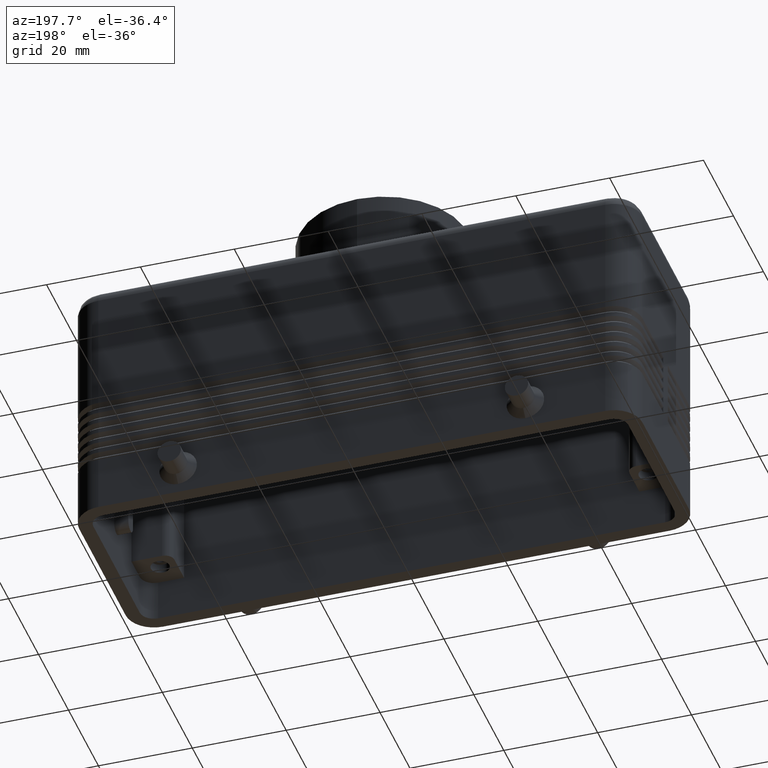
[diagram: clean part render]
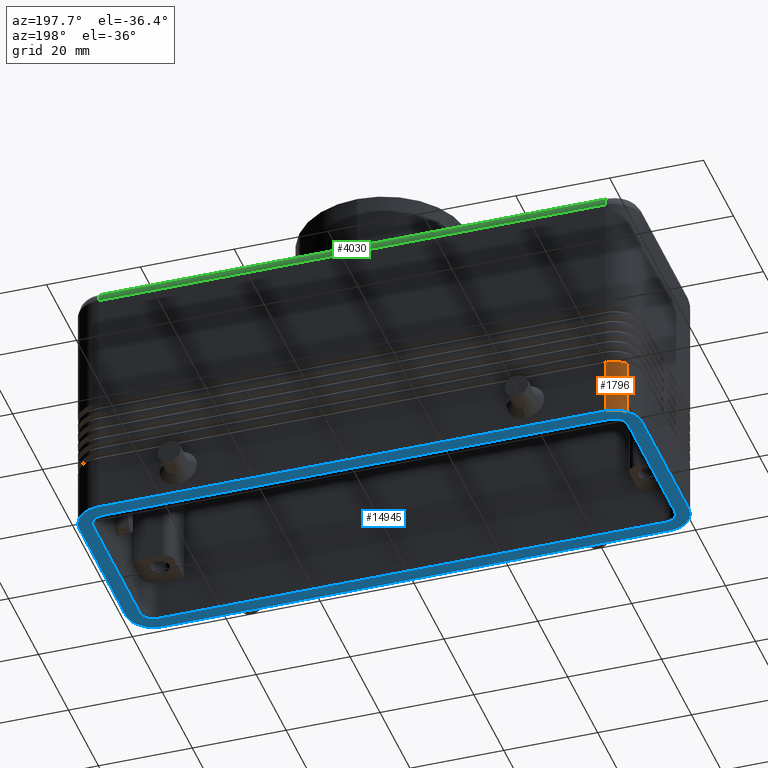
[diagram: same view with three faces highlighted in distinct colors, each labeled with its STEP entity id]
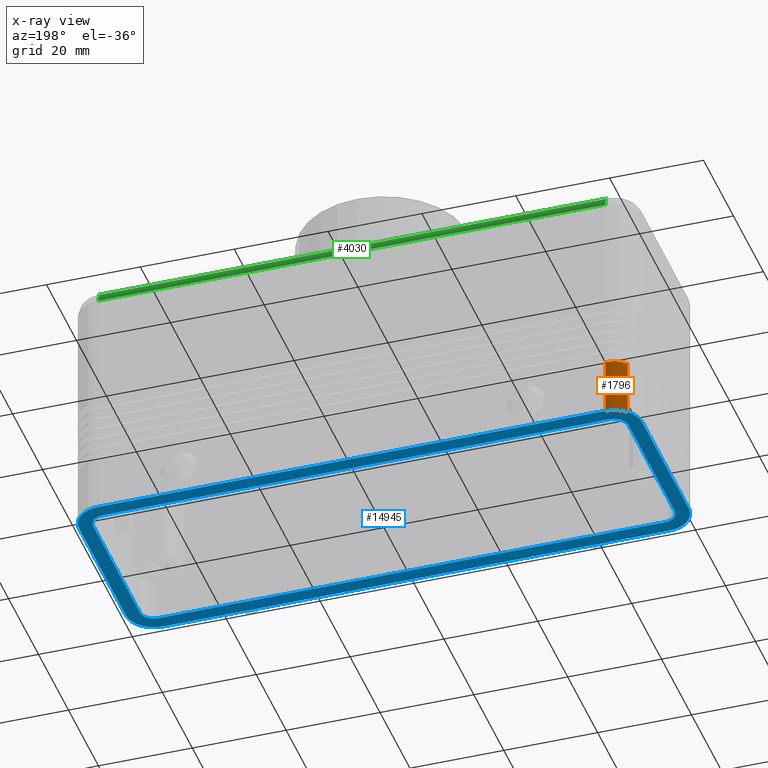
[diagram: x-ray of the same camera — body ghosted, the three highlighted faces saturated]
A machine part, auxiliary view with three faces highlighted in distinct colors.
The next image is the same camera in x-ray (body ghosted, the three faces saturated) — at least one of them is partly hidden behind the body in this view.
Their STEP definitions:

[orange] entity #1796 — the highlighted cylindrical surface (edge-blend (fillet) strip) has radius 6 mm, axis along (-0, 0, -1).
#1755=CARTESIAN_POINT('',(-53.999999999999986,15.499999999999998,41.250000000000000));
#1756=DIRECTION('',(-1.614870E-016,0.0,-1.0));
#1757=DIRECTION('',(-0.707106781186548,0.707106781186547,0.0));
#1758=AXIS2_PLACEMENT_3D('',#1755,#1756,#1757);
#1759=CYLINDRICAL_SURFACE('',#1758,6.000000000000001);
#1760=CARTESIAN_POINT('',(-58.242640687119284,19.742640687119277,12.250000000000025));
#1761=VERTEX_POINT('',#1760);
#1762=CARTESIAN_POINT('',(-58.242640687119284,19.742640687119277,0.0));
#1763=VERTEX_POINT('',#1762);
#1764=CARTESIAN_POINT('',(-58.242640687119284,19.742640687119277,12.250000000000025));
#1765=DIRECTION('',(0.0,0.0,-1.0));
#1766=VECTOR('',#1765,12.250000000000025);
#1767=LINE('',#1764,#1766);
#1768=EDGE_CURVE('',#1761,#1763,#1767,.T.);
#1769=ORIENTED_EDGE('',*,*,#1768,.F.);
#1770=CARTESIAN_POINT('',(-53.999999999999993,21.500000000000000,12.250000000000005));
#1771=VERTEX_POINT('',#1770);
#1772=CARTESIAN_POINT('',(-53.999999999999993,15.499999999999998,12.250000000000023));
#1773=DIRECTION('',(0.0,0.0,1.0));
#1774=DIRECTION('',(-0.707106781186548,0.707106781186547,0.0));
#1775=AXIS2_PLACEMENT_3D('',#1772,#1773,#1774);
#1776=CIRCLE('',#1775,6.0);
#1777=EDGE_CURVE('',#1771,#1761,#1776,.T.);
#1778=ORIENTED_EDGE('',*,*,#1777,.F.);
#1779=CARTESIAN_POINT('',(-53.999999999999986,21.500000000000000,0.0));
#1780=VERTEX_POINT('',#1779);
#1781=CARTESIAN_POINT('',(-53.999999999999993,21.500000000000000,12.250000000000005));
#1782=DIRECTION('',(0.0,0.0,-1.0));
#1783=VECTOR('',#1782,12.250000000000005);
#1784=LINE('',#1781,#1783);
#1785=EDGE_CURVE('',#1771,#1780,#1784,.T.);
#1786=ORIENTED_EDGE('',*,*,#1785,.T.);
#1787=CARTESIAN_POINT('',(-53.999999999999993,15.499999999999998,0.0));
#1788=DIRECTION('',(0.0,0.0,1.000000000000000));
#1789=DIRECTION('',(-0.707106781186548,0.707106781186547,0.0));
#1790=AXIS2_PLACEMENT_3D('',#1787,#1788,#1789);
#1791=CIRCLE('',#1790,6.000000000000001);
#1792=EDGE_CURVE('',#1780,#1763,#1791,.T.);
#1793=ORIENTED_EDGE('',*,*,#1792,.T.);
#1794=EDGE_LOOP('',(#1769,#1778,#1786,#1793));
#1795=FACE_OUTER_BOUND('',#1794,.T.);
#1796=ADVANCED_FACE('',(#1795),#1759,.T.);

[blue] entity #14945 — the highlighted planar face has unit normal (0, 0, -1).
#306=CARTESIAN_POINT('',(-58.242640687119284,-19.742640687119277,0.0));
#307=VERTEX_POINT('',#306);
#316=CARTESIAN_POINT('',(-53.999999999999986,-21.500000000000000,0.0));
#317=VERTEX_POINT('',#316);
#318=CARTESIAN_POINT('',(-53.999999999999993,-15.499999999999998,0.0));
#319=DIRECTION('',(0.0,0.0,1.000000000000000));
#320=DIRECTION('',(-0.707106781186548,-0.707106781186547,0.0));
#321=AXIS2_PLACEMENT_3D('',#318,#319,#320);
#322=CIRCLE('',#321,6.000000000000001);
#323=EDGE_CURVE('',#307,#317,#322,.T.);
#350=CARTESIAN_POINT('',(58.242640687119284,-19.742640687119284,1.776357E-014));
#351=VERTEX_POINT('',#350);
#367=CARTESIAN_POINT('',(54.0,-21.500000000000000,0.0));
#368=VERTEX_POINT('',#367);
#375=CARTESIAN_POINT('',(54.0,-15.499999999999998,1.776357E-014));
#376=DIRECTION('',(0.0,0.0,1.0));
#377=DIRECTION('',(0.707106781186547,-0.707106781186548,0.0));
#378=AXIS2_PLACEMENT_3D('',#375,#376,#377);
#379=CIRCLE('',#378,6.0);
#380=EDGE_CURVE('',#368,#351,#379,.T.);
#1718=CARTESIAN_POINT('',(58.242640687119284,19.742640687119284,1.776357E-014));
#1719=VERTEX_POINT('',#1718);
#1728=CARTESIAN_POINT('',(54.0,21.500000000000000,0.0));
#1729=VERTEX_POINT('',#1728);
#1730=CARTESIAN_POINT('',(54.0,15.499999999999998,1.776357E-014));
#1731=DIRECTION('',(0.0,0.0,1.0));
#1732=DIRECTION('',(0.707106781186547,0.707106781186548,0.0));
#1733=AXIS2_PLACEMENT_3D('',#1730,#1731,#1732);
#1734=CIRCLE('',#1733,6.0);
#1735=EDGE_CURVE('',#1719,#1729,#1734,.T.);
#1762=CARTESIAN_POINT('',(-58.242640687119284,19.742640687119277,0.0));
#1763=VERTEX_POINT('',#1762);
#1779=CARTESIAN_POINT('',(-53.999999999999986,21.500000000000000,0.0));
#1780=VERTEX_POINT('',#1779);
#1787=CARTESIAN_POINT('',(-53.999999999999993,15.499999999999998,0.0));
#1788=DIRECTION('',(0.0,0.0,1.000000000000000));
#1789=DIRECTION('',(-0.707106781186548,0.707106781186547,0.0));
#1790=AXIS2_PLACEMENT_3D('',#1787,#1788,#1789);
#1791=CIRCLE('',#1790,6.000000000000001);
#1792=EDGE_CURVE('',#1780,#1763,#1791,.T.);
#4955=CARTESIAN_POINT('',(57.0,15.499999999999998,0.0));
#4956=VERTEX_POINT('',#4955);
#4963=CARTESIAN_POINT('',(57.0,-15.499999999999998,0.0));
#4964=VERTEX_POINT('',#4963);
#4965=CARTESIAN_POINT('',(57.0,-15.499999999999998,0.0));
#4966=DIRECTION('',(0.0,1.0,0.0));
#4967=VECTOR('',#4966,30.999999999999996);
#4968=LINE('',#4965,#4967);
#4969=EDGE_CURVE('',#4964,#4956,#4968,.T.);
#6390=CARTESIAN_POINT('',(60.0,-15.499999999999998,0.0));
#6391=VERTEX_POINT('',#6390);
#6398=CARTESIAN_POINT('',(60.0,15.499999999999998,0.0));
#6399=VERTEX_POINT('',#6398);
#6400=CARTESIAN_POINT('',(60.0,15.499999999999998,0.0));
#6401=DIRECTION('',(0.0,-1.0,0.0));
#6402=VECTOR('',#6401,30.999999999999996);
#6403=LINE('',#6400,#6402);
#6404=EDGE_CURVE('',#6399,#6391,#6403,.T.);
#7573=CARTESIAN_POINT('',(54.0,18.500000000000000,0.0));
#7574=VERTEX_POINT('',#7573);
#7581=CARTESIAN_POINT('',(54.0,15.499999999999998,0.0));
#7582=DIRECTION('',(0.0,0.0,1.0));
#7583=DIRECTION('',(1.0,0.0,0.0));
#7584=AXIS2_PLACEMENT_3D('',#7581,#7582,#7583);
#7585=CIRCLE('',#7584,3.000000000000000);
#7586=EDGE_CURVE('',#4956,#7574,#7585,.T.);
#7599=CARTESIAN_POINT('',(54.0,-18.500000000000000,0.0));
#7600=VERTEX_POINT('',#7599);
#7601=CARTESIAN_POINT('',(54.0,-15.499999999999998,0.0));
#7602=DIRECTION('',(0.0,0.0,1.0));
#7603=DIRECTION('',(0.0,-1.0,0.0));
#7604=AXIS2_PLACEMENT_3D('',#7601,#7602,#7603);
#7605=CIRCLE('',#7604,3.000000000000000);
#7606=EDGE_CURVE('',#7600,#4964,#7605,.T.);
#7622=CARTESIAN_POINT('',(-54.0,-18.500000000000000,0.0));
#7623=VERTEX_POINT('',#7622);
#7624=CARTESIAN_POINT('',(-54.0,-18.500000000000000,0.0));
#7625=DIRECTION('',(1.0,0.0,0.0));
#7626=VECTOR('',#7625,108.0);
#7627=LINE('',#7624,#7626);
#7628=EDGE_CURVE('',#7623,#7600,#7627,.T.);
#7667=CARTESIAN_POINT('',(-57.0,-15.499999999999998,0.0));
#7668=VERTEX_POINT('',#7667);
#7669=CARTESIAN_POINT('',(-54.0,-15.499999999999998,0.0));
#7670=DIRECTION('',(0.0,0.0,1.0));
#7671=DIRECTION('',(-1.0,0.0,0.0));
#7672=AXIS2_PLACEMENT_3D('',#7669,#7670,#7671);
#7673=CIRCLE('',#7672,3.000000000000000);
#7674=EDGE_CURVE('',#7668,#7623,#7673,.T.);
#7700=CARTESIAN_POINT('',(-57.0,15.499999999999998,0.0));
#7701=VERTEX_POINT('',#7700);
#7702=CARTESIAN_POINT('',(-57.0,15.499999999999998,0.0));
#7703=DIRECTION('',(0.0,-1.0,0.0));
#7704=VECTOR('',#7703,30.999999999999996);
#7705=LINE('',#7702,#7704);
#7706=EDGE_CURVE('',#7701,#7668,#7705,.T.);
#7729=CARTESIAN_POINT('',(-54.0,18.500000000000000,0.0));
#7730=VERTEX_POINT('',#7729);
#7731=CARTESIAN_POINT('',(-54.0,15.499999999999998,0.0));
#7732=DIRECTION('',(0.0,0.0,1.0));
#7733=DIRECTION('',(0.0,1.0,0.0));
#7734=AXIS2_PLACEMENT_3D('',#7731,#7732,#7733);
#7735=CIRCLE('',#7734,3.000000000000000);
#7736=EDGE_CURVE('',#7730,#7701,#7735,.T.);
#7754=CARTESIAN_POINT('',(54.0,18.500000000000000,0.0));
#7755=DIRECTION('',(-1.0,0.0,0.0));
#7756=VECTOR('',#7755,108.0);
#7757=LINE('',#7754,#7756);
#7758=EDGE_CURVE('',#7574,#7730,#7757,.T.);
#9101=CARTESIAN_POINT('',(-60.0,15.499999999999998,0.0));
#9102=VERTEX_POINT('',#9101);
#9109=CARTESIAN_POINT('',(-60.0,-15.499999999999998,0.0));
#9110=VERTEX_POINT('',#9109);
#9111=CARTESIAN_POINT('',(-60.0,-15.499999999999998,0.0));
#9112=DIRECTION('',(0.0,1.0,0.0));
#9113=VECTOR('',#9112,30.999999999999996);
#9114=LINE('',#9111,#9113);
#9115=EDGE_CURVE('',#9110,#9102,#9114,.T.);
#10579=CARTESIAN_POINT('',(-53.999999999999993,15.499999999999998,0.0));
#10580=DIRECTION('',(0.0,0.0,1.000000000000000));
#10581=DIRECTION('',(-0.707106781186548,0.707106781186547,0.0));
#10582=AXIS2_PLACEMENT_3D('',#10579,#10580,#10581);
#10583=CIRCLE('',#10582,6.000000000000001);
#10584=EDGE_CURVE('',#1763,#9102,#10583,.T.);
#10598=CARTESIAN_POINT('',(-53.999999999999986,21.500000000000000,0.0));
#10599=DIRECTION('',(1.0,0.0,0.0));
#10600=VECTOR('',#10599,107.999999999999990);
#10601=LINE('',#10598,#10600);
#10602=EDGE_CURVE('',#1780,#1729,#10601,.T.);
#10624=CARTESIAN_POINT('',(54.0,15.499999999999998,1.776357E-014));
#10625=DIRECTION('',(0.0,0.0,1.0));
#10626=DIRECTION('',(0.707106781186547,0.707106781186548,0.0));
#10627=AXIS2_PLACEMENT_3D('',#10624,#10625,#10626);
#10628=CIRCLE('',#10627,6.0);
#10629=EDGE_CURVE('',#6399,#1719,#10628,.T.);
#13089=CARTESIAN_POINT('',(54.0,-15.499999999999998,1.776357E-014));
#13090=DIRECTION('',(0.0,0.0,1.0));
#13091=DIRECTION('',(0.707106781186547,-0.707106781186548,0.0));
#13092=AXIS2_PLACEMENT_3D('',#13089,#13090,#13091);
#13093=CIRCLE('',#13092,6.0);
#13094=EDGE_CURVE('',#351,#6391,#13093,.T.);
#13108=CARTESIAN_POINT('',(54.0,-21.500000000000000,0.0));
#13109=DIRECTION('',(-1.0,0.0,0.0));
#13110=VECTOR('',#13109,107.999999999999990);
#13111=LINE('',#13108,#13110);
#13112=EDGE_CURVE('',#368,#317,#13111,.T.);
#13134=CARTESIAN_POINT('',(-53.999999999999993,-15.499999999999998,0.0));
#13135=DIRECTION('',(0.0,0.0,1.000000000000000));
#13136=DIRECTION('',(-0.707106781186548,-0.707106781186547,0.0));
#13137=AXIS2_PLACEMENT_3D('',#13134,#13135,#13136);
#13138=CIRCLE('',#13137,6.000000000000001);
#13139=EDGE_CURVE('',#9110,#307,#13138,.T.);
#14916=CARTESIAN_POINT('',(-60.0,0.0,0.0));
#14917=DIRECTION('',(0.0,0.0,-1.0));
#14918=DIRECTION('',(-1.0,0.0,0.0));
#14919=AXIS2_PLACEMENT_3D('',#14916,#14917,#14918);
#14920=PLANE('',#14919);
#14921=ORIENTED_EDGE('',*,*,#13139,.F.);
#14922=ORIENTED_EDGE('',*,*,#9115,.T.);
#14923=ORIENTED_EDGE('',*,*,#10584,.F.);
#14924=ORIENTED_EDGE('',*,*,#1792,.F.);
#14925=ORIENTED_EDGE('',*,*,#10602,.T.);
#14926=ORIENTED_EDGE('',*,*,#1735,.F.);
#14927=ORIENTED_EDGE('',*,*,#10629,.F.);
#14928=ORIENTED_EDGE('',*,*,#6404,.T.);
#14929=ORIENTED_EDGE('',*,*,#13094,.F.);
#14930=ORIENTED_EDGE('',*,*,#380,.F.);
#14931=ORIENTED_EDGE('',*,*,#13112,.T.);
#14932=ORIENTED_EDGE('',*,*,#323,.F.);
#14933=EDGE_LOOP('',(#14921,#14922,#14923,#14924,#14925,#14926,#14927,#14928,#14929,#14930,#14931,#14932));
#14934=FACE_OUTER_BOUND('',#14933,.T.);
#14935=ORIENTED_EDGE('',*,*,#7586,.T.);
#14936=ORIENTED_EDGE('',*,*,#7758,.T.);
#14937=ORIENTED_EDGE('',*,*,#7736,.T.);
#14938=ORIENTED_EDGE('',*,*,#7706,.T.);
#14939=ORIENTED_EDGE('',*,*,#7674,.T.);
#14940=ORIENTED_EDGE('',*,*,#7628,.T.);
#14941=ORIENTED_EDGE('',*,*,#7606,.T.);
#14942=ORIENTED_EDGE('',*,*,#4969,.T.);
#14943=EDGE_LOOP('',(#14935,#14936,#14937,#14938,#14939,#14940,#14941,#14942));
#14944=FACE_BOUND('',#14943,.T.);
#14945=ADVANCED_FACE('',(#14934,#14944),#14920,.T.);

[green] entity #4030 — the highlighted cylindrical surface (edge-blend (fillet) strip) has radius 3 mm, axis along (-1, 0, 0).
#2126=CARTESIAN_POINT('',(-53.999999999999986,21.500000000000000,52.000000000000021));
#2127=VERTEX_POINT('',#2126);
#3975=CARTESIAN_POINT('',(53.999999999999993,21.500000000000000,52.0));
#3976=VERTEX_POINT('',#3975);
#3993=CARTESIAN_POINT('',(29.999999999999996,18.500000000000000,52.0));
#3994=DIRECTION('',(-1.0,0.0,0.0));
#3995=DIRECTION('',(0.0,0.707106781186549,0.707106781186546));
#3996=AXIS2_PLACEMENT_3D('',#3993,#3994,#3995);
#3997=CYLINDRICAL_SURFACE('',#3996,3.000000000000000);
#3998=CARTESIAN_POINT('',(53.999999999999993,20.621320343559645,54.121320343559638));
#3999=VERTEX_POINT('',#3998);
#4000=CARTESIAN_POINT('',(-53.999999999999986,20.621320343559638,54.121320343559631));
#4001=VERTEX_POINT('',#4000);
#4002=CARTESIAN_POINT('',(53.999999999999993,20.621320343559645,54.121320343559638));
#4003=DIRECTION('',(-1.0,0.0,0.0));
#4004=VECTOR('',#4003,107.999999999999970);
#4005=LINE('',#4002,#4004);
#4006=EDGE_CURVE('',#3999,#4001,#4005,.T.);
#4007=ORIENTED_EDGE('',*,*,#4006,.F.);
#4008=CARTESIAN_POINT('',(53.999999999999993,18.500000000000000,52.0));
#4009=DIRECTION('',(1.0,0.0,0.0));
#4010=DIRECTION('',(0.0,1.0,0.0));
#4011=AXIS2_PLACEMENT_3D('',#4008,#4009,#4010);
#4012=CIRCLE('',#4011,3.000000000000000);
#4013=EDGE_CURVE('',#3976,#3999,#4012,.T.);
#4014=ORIENTED_EDGE('',*,*,#4013,.F.);
#4015=CARTESIAN_POINT('',(53.999999999999993,21.500000000000000,52.0));
#4016=DIRECTION('',(-1.0,0.0,0.0));
#4017=VECTOR('',#4016,107.999999999999970);
#4018=LINE('',#4015,#4017);
#4019=EDGE_CURVE('',#3976,#2127,#4018,.T.);
#4020=ORIENTED_EDGE('',*,*,#4019,.T.);
#4021=CARTESIAN_POINT('',(-53.999999999999986,18.499999999999996,52.000000000000021));
#4022=DIRECTION('',(-1.0,0.0,0.0));
#4023=DIRECTION('',(0.0,0.0,1.0));
#4024=AXIS2_PLACEMENT_3D('',#4021,#4022,#4023);
#4025=CIRCLE('',#4024,2.999999999999981);
#4026=EDGE_CURVE('',#4001,#2127,#4025,.T.);
#4027=ORIENTED_EDGE('',*,*,#4026,.F.);
#4028=EDGE_LOOP('',(#4007,#4014,#4020,#4027));
#4029=FACE_OUTER_BOUND('',#4028,.T.);
#4030=ADVANCED_FACE('',(#4029),#3997,.T.);